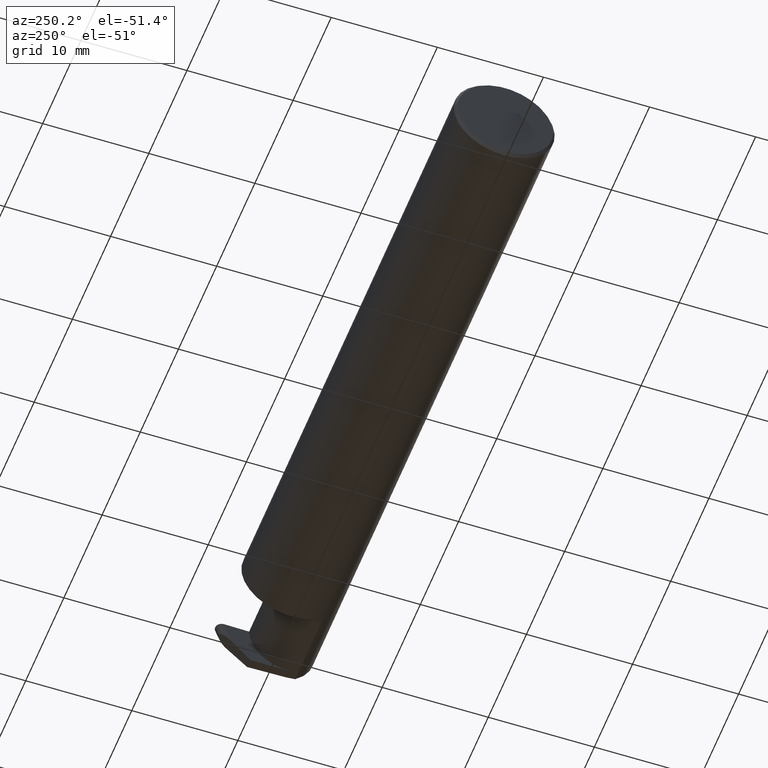
[diagram: clean part render]
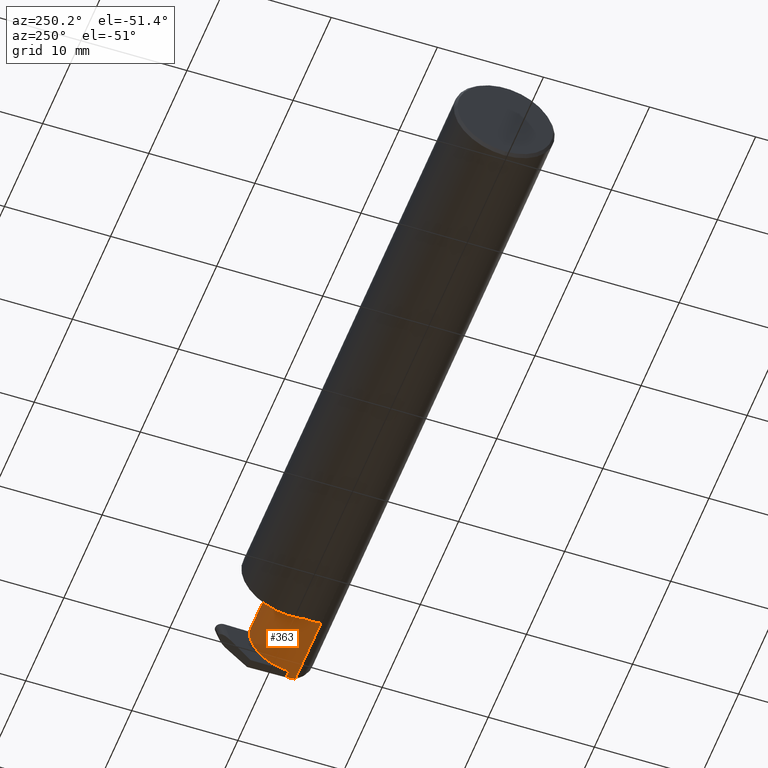
[diagram: same view with one face highlighted and labeled with its STEP entity id]
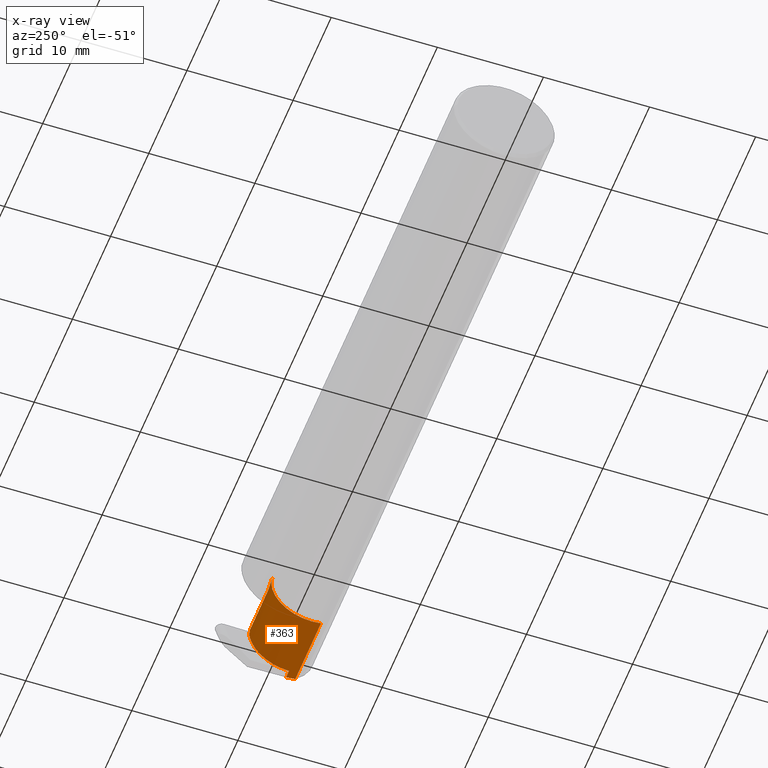
[diagram: x-ray of the same camera — body ghosted, the highlighted face saturated]
A machine part, auxiliary view. The second image highlights one B-rep face of the part: STEP entity #363.
The next image is the same camera in x-ray: the body ghosted, the highlighted face saturated — about 0% of this face is hidden behind the body in this view.
In plain terms, the highlighted cylindrical surface (partial cylindrical patch) has radius 3.81 mm, axis along (-1, -0, -0).
Its self-contained STEP definition (entity closure, byte-faithful):
#29 = ORIENTED_EDGE ( 'NONE', *, *, #310, .T. ) ;
#34 = DIRECTION ( 'NONE',  ( 0.000000000000000000, -1.000000000000000000, 0.000000000000000000 ) ) ;
#52 = CARTESIAN_POINT ( 'NONE',  ( 2.447180481656269446, 0.06628460753897337521, -0.01046347106162403597 ) ) ;
#64 = ORIENTED_EDGE ( 'NONE', *, *, #370, .T. ) ;
#73 = AXIS2_PLACEMENT_3D ( 'NONE', #157, #599, #104 ) ;
#77 = VERTEX_POINT ( 'NONE', #361 ) ;
#80 =( BOUNDED_CURVE ( )  B_SPLINE_CURVE ( 3, ( #403, #181, #503, #665 ),
 .UNSPECIFIED., .F., .F. ) 
 B_SPLINE_CURVE_WITH_KNOTS ( ( 4, 4 ),
 ( 0.2354267821558881923, 0.4634648172053364990 ),
 .UNSPECIFIED. ) 
 CURVE ( )  GEOMETRIC_REPRESENTATION_ITEM ( )  RATIONAL_B_SPLINE_CURVE ( ( 1.000000000000000000, 0.9956712472009928705, 0.9956712472009928705, 1.000000000000000000 ) ) 
 REPRESENTATION_ITEM ( '' )  );
#85 = CARTESIAN_POINT ( 'NONE',  ( 2.447545874117295739, 0.06664999999999991764, 0.000000000000000000 ) ) ;
#104 = DIRECTION ( 'NONE',  ( 0.000000000000000000, -1.000000000000000000, 0.000000000000000000 ) ) ;
#115 = CARTESIAN_POINT ( 'NONE',  ( 2.260000000000000231, 0.06664999999999984825, 2.939152317953647352E-17 ) ) ;
#128 = VERTEX_POINT ( 'NONE', #207 ) ;
#135 = VERTEX_POINT ( 'NONE', #52 ) ;
#157 = CARTESIAN_POINT ( 'NONE',  ( 2.225000000000000089, -0.08335000000000010456, 0.000000000000000000 ) ) ;
#169 = LINE ( 'NONE', #537, #384 ) ;
#181 = CARTESIAN_POINT ( 'NONE',  ( 2.490145048687840923, -0.1061291577212404302, -0.1486999626928448004 ) ) ;
#197 = EDGE_CURVE ( 'NONE', #77, #301, #641, .T. ) ;
#198 = VECTOR ( 'NONE', #541, 39.37007874015748143 ) ;
#200 = CARTESIAN_POINT ( 'NONE',  ( 2.236476718690367793, 0.06526343940705725544, 0.02352328130963212555 ) ) ;
#207 = CARTESIAN_POINT ( 'NONE',  ( 2.225000000000000089, -0.1172600179964003314, -0.1461167706989305870 ) ) ;
#217 = EDGE_LOOP ( 'NONE', ( #406, #700, #64, #29, #506, #223, #456, #440, #294 ) ) ;
#223 = ORIENTED_EDGE ( 'NONE', *, *, #232, .F. ) ;
#224 = CARTESIAN_POINT ( 'NONE',  ( 2.460115337567889249, -0.08334999999999999354, -0.1500000000000000500 ) ) ;
#230 = AXIS2_PLACEMENT_3D ( 'NONE', #479, #685, #34 ) ;
#232 = EDGE_CURVE ( 'NONE', #296, #135, #169, .T. ) ;
#236 = VERTEX_POINT ( 'NONE', #115 ) ;
#243 = B_SPLINE_CURVE_WITH_KNOTS ( 'NONE', 3,
 ( #568, #366, #307, #85 ),
 .UNSPECIFIED., .F., .F.,
 ( 4, 4 ),
 ( 0.000000000000000000, 1.000000000000000000 ),
 .UNSPECIFIED. ) ;
#245 = CARTESIAN_POINT ( 'NONE',  ( 2.454977397848501219, 0.06628460753894979685, -0.01046347106162132459 ) ) ;
#255 = CARTESIAN_POINT ( 'NONE',  ( 2.460115337567889249, -0.08334999999999999354, -0.1500000000000000500 ) ) ;
#260 = CYLINDRICAL_SURFACE ( 'NONE', #230, 0.1500000000000000777 ) ;
#273 = EDGE_CURVE ( 'NONE', #452, #128, #453, .T. ) ;
#294 = ORIENTED_EDGE ( 'NONE', *, *, #583, .F. ) ;
#296 = VERTEX_POINT ( 'NONE', #502 ) ;
#301 = VERTEX_POINT ( 'NONE', #224 ) ;
#302 = LINE ( 'NONE', #519, #603 ) ;
#307 = CARTESIAN_POINT ( 'NONE',  ( 2.447424076630286827, 0.06652820251299107479, -0.003487823687208008085 ) ) ;
#310 = EDGE_CURVE ( 'NONE', #236, #448, #302, .T. ) ;
#323 = VERTEX_POINT ( 'NONE', #676 ) ;
#326 = CARTESIAN_POINT ( 'NONE',  ( 2.733184360054362827, -0.08334999999999899434, -0.1500000000000000500 ) ) ;
#333 =( BOUNDED_CURVE ( )  B_SPLINE_CURVE ( 3, ( #255, #529, #421, #245 ),
 .UNSPECIFIED., .F., .F. ) 
 B_SPLINE_CURVE_WITH_KNOTS ( ( 4, 4 ),
 ( 3.176499238629666433, 4.677482395344761734 ),
 .UNSPECIFIED. ) 
 CURVE ( )  GEOMETRIC_REPRESENTATION_ITEM ( )  RATIONAL_B_SPLINE_CURVE ( ( 1.000000000000000000, 0.8209024677461199682, 0.8209024677461199682, 1.000000000000000000 ) ) 
 REPRESENTATION_ITEM ( '' )  );
#341 = LINE ( 'NONE', #551, #472 ) ;
#347 = EDGE_CURVE ( 'NONE', #301, #296, #333, .T. ) ;
#361 = CARTESIAN_POINT ( 'NONE',  ( 2.490497255146305822, -0.08334999999999899434, -0.1500000000000000500 ) ) ;
#363 = ADVANCED_FACE ( 'NONE', ( #417 ), #260, .T. ) ;
#366 = CARTESIAN_POINT ( 'NONE',  ( 2.447302279143278358, 0.06640640502598223194, -0.006975647374416017038 ) ) ;
#370 = EDGE_CURVE ( 'NONE', #452, #236, #588, .T. ) ;
#384 = VECTOR ( 'NONE', #596, 39.37007874015748143 ) ;
#387 = EDGE_CURVE ( 'NONE', #135, #448, #243, .T. ) ;
#403 = CARTESIAN_POINT ( 'NONE',  ( 2.490040979592266890, -0.1172600179964004424, -0.1461167706989304482 ) ) ;
#406 = ORIENTED_EDGE ( 'NONE', *, *, #637, .T. ) ;
#417 = FACE_OUTER_BOUND ( 'NONE', #217, .T. ) ;
#421 = CARTESIAN_POINT ( 'NONE',  ( 2.457926070388992468, 0.06048930266824086022, -0.09334019187383288396 ) ) ;
#426 = CARTESIAN_POINT ( 'NONE',  ( 2.225000000000000089, 0.06250952145814826777, 0.03500000000000007272 ) ) ;
#440 = ORIENTED_EDGE ( 'NONE', *, *, #197, .F. ) ;
#448 = VERTEX_POINT ( 'NONE', #638 ) ;
#452 = VERTEX_POINT ( 'NONE', #426 ) ;
#453 = CIRCLE ( 'NONE', #73, 0.1500000000000001610 ) ;
#456 = ORIENTED_EDGE ( 'NONE', *, *, #347, .F. ) ;
#467 = DIRECTION ( 'NONE',  ( 1.000000000000000000, 4.724792446347703932E-16, 0.000000000000000000 ) ) ;
#472 = VECTOR ( 'NONE', #659, 39.37007874015748143 ) ;
#479 = CARTESIAN_POINT ( 'NONE',  ( 2.200000000000000178, -0.08335000000000011844, 0.000000000000000000 ) ) ;
#502 = CARTESIAN_POINT ( 'NONE',  ( 2.454977397848501219, 0.06628460753894979685, -0.01046347106162132459 ) ) ;
#503 = CARTESIAN_POINT ( 'NONE',  ( 2.490297801769516539, -0.09477667630339349503, -0.1500000000000001887 ) ) ;
#506 = ORIENTED_EDGE ( 'NONE', *, *, #387, .F. ) ;
#519 = CARTESIAN_POINT ( 'NONE',  ( 2.200000000000000178, 0.06664999999999995928, 3.673940397442061963E-17 ) ) ;
#529 = CARTESIAN_POINT ( 'NONE',  ( 2.460012367653796606, -0.0002709026822648478105, -0.1500000000000001055 ) ) ;
#537 = CARTESIAN_POINT ( 'NONE',  ( 2.199999999999998845, 0.06628460753896874003, -0.01046347106168848962 ) ) ;
#541 = DIRECTION ( 'NONE',  ( -1.000000000000000000, -0.000000000000000000, -0.000000000000000000 ) ) ;
#551 = CARTESIAN_POINT ( 'NONE',  ( 2.338979999999999837, -0.1172600179964005118, -0.1461167706989304482 ) ) ;
#568 = CARTESIAN_POINT ( 'NONE',  ( 2.447180481656269446, 0.06628460753897337521, -0.01046347106162403597 ) ) ;
#573 = CARTESIAN_POINT ( 'NONE',  ( 2.248197494504676097, 0.06665000000000000091, 0.01180250549532440955 ) ) ;
#583 = EDGE_CURVE ( 'NONE', #323, #77, #80, .T. ) ;
#588 =( BOUNDED_CURVE ( )  B_SPLINE_CURVE ( 3, ( #633, #200, #573, #630 ),
 .UNSPECIFIED., .F., .F. ) 
 B_SPLINE_CURVE_WITH_KNOTS ( ( 4, 4 ),
 ( 1.335292090074097437, 1.570796326794897002 ),
 .UNSPECIFIED. ) 
 CURVE ( )  GEOMETRIC_REPRESENTATION_ITEM ( )  RATIONAL_B_SPLINE_CURVE ( ( 1.000000000000000000, 0.9953834841226971708, 0.9953834841226971708, 1.000000000000000000 ) ) 
 REPRESENTATION_ITEM ( '' )  );
#596 = DIRECTION ( 'NONE',  ( -1.000000000000000000, -4.724792446347703932E-16, -0.000000000000000000 ) ) ;
#599 = DIRECTION ( 'NONE',  ( -1.000000000000000000, -4.724792446347703932E-16, -0.000000000000000000 ) ) ;
#603 = VECTOR ( 'NONE', #467, 39.37007874015748143 ) ;
#630 = CARTESIAN_POINT ( 'NONE',  ( 2.260000000000000231, 0.06664999999999984825, 2.939152317953647352E-17 ) ) ;
#633 = CARTESIAN_POINT ( 'NONE',  ( 2.225000000000000089, 0.06250952145814826777, 0.03500000000000007272 ) ) ;
#637 = EDGE_CURVE ( 'NONE', #323, #128, #341, .T. ) ;
#638 = CARTESIAN_POINT ( 'NONE',  ( 2.447545874117295739, 0.06664999999999991764, 0.000000000000000000 ) ) ;
#641 = LINE ( 'NONE', #326, #198 ) ;
#659 = DIRECTION ( 'NONE',  ( -1.000000000000000000, -4.724792446347703932E-16, -0.000000000000000000 ) ) ;
#665 = CARTESIAN_POINT ( 'NONE',  ( 2.490497255146305822, -0.08334999999999899434, -0.1500000000000000500 ) ) ;
#676 = CARTESIAN_POINT ( 'NONE',  ( 2.490040979592266890, -0.1172600179964004424, -0.1461167706989304482 ) ) ;
#685 = DIRECTION ( 'NONE',  ( -1.000000000000000000, -4.724792446347703932E-16, -0.000000000000000000 ) ) ;
#700 = ORIENTED_EDGE ( 'NONE', *, *, #273, .F. ) ;